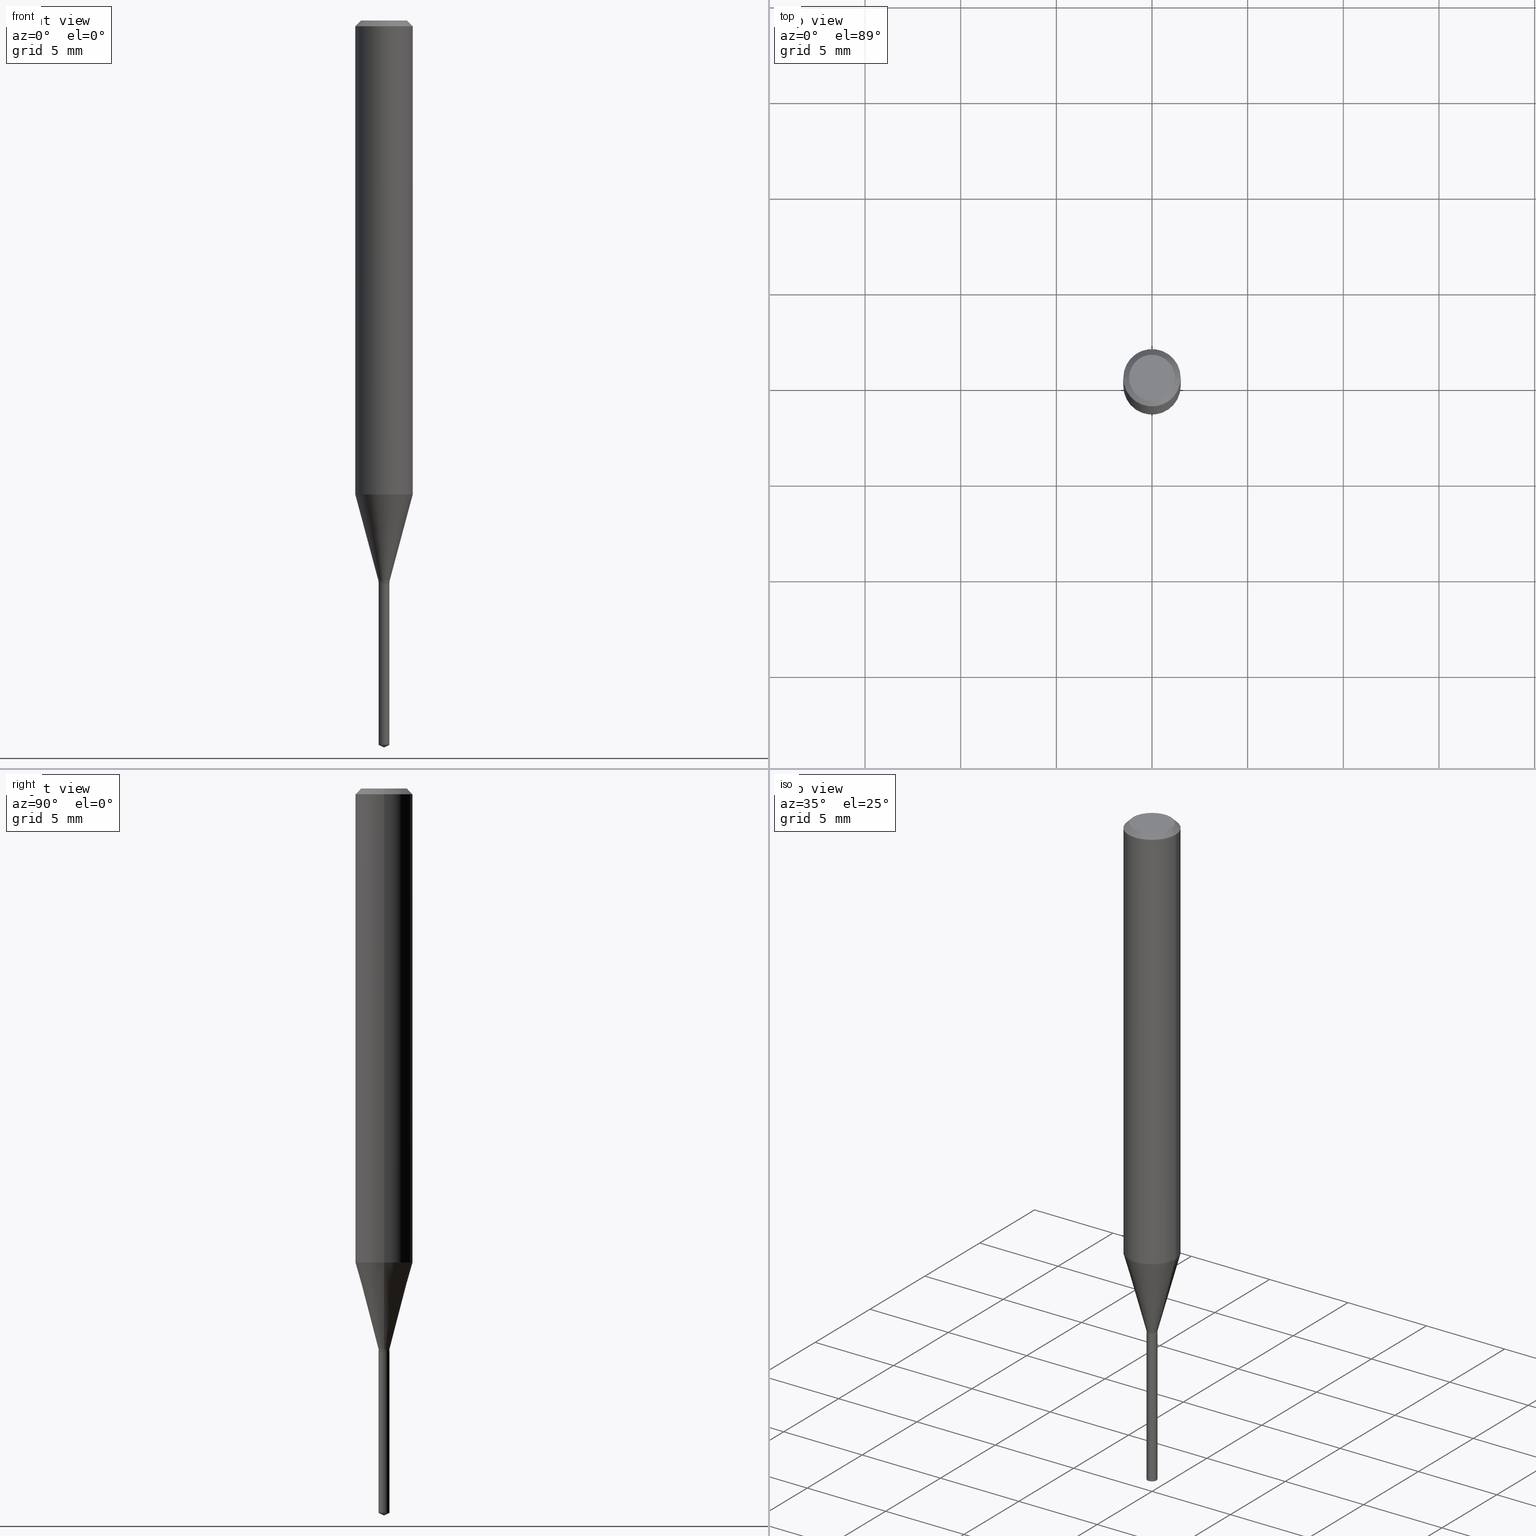
[diagram: canonical four-view strip — front | top / right | iso, engineering-drawing reading convention]
A machine part, canonical four-view strip (front | top / right | iso — engineering-drawing reading convention). The complete STEP part file that produces these views, byte-faithful:
ISO-10303-21;
HEADER;
FILE_DESCRIPTION (( 'STEP AP203' ),
    '1' );
FILE_NAME ('07776.STEP',
    '2024-04-24T02:47:26',
    ( '' ),
    ( '' ),
    'SwSTEP 2.0',
    'SolidWorks 2023',
    '' );
FILE_SCHEMA (( 'CONFIG_CONTROL_DESIGN' ));
ENDSEC;

DATA;
#1 = ORIENTED_EDGE ( 'NONE', *, *, #54, .F. ) ;
#2 = ORIENTED_EDGE ( 'NONE', *, *, #112, .T. ) ;
#3 = APPLICATION_CONTEXT ( 'configuration controlled 3d designs of mechanical parts and assemblies' ) ;
#4 = AXIS2_PLACEMENT_3D ( 'NONE', #133, #358, #280 ) ;
#5 = DIRECTION ( 'NONE',  ( 2.445468806185136597E-29, -3.491481338843145583E-15, -1.000000000000000000 ) ) ;
#6 = DIRECTION ( 'NONE',  ( -2.445468806185136597E-29, 3.491481338843145583E-15, 1.000000000000000000 ) ) ;
#7 = DIRECTION ( 'NONE',  ( -2.445468806185136597E-29, 3.491481338843145583E-15, 1.000000000000000000 ) ) ;
#8 = ORIENTED_EDGE ( 'NONE', *, *, #193, .F. ) ;
#9 = AXIS2_PLACEMENT_3D ( 'NONE', #57, #472, #124 ) ;
#10 = CC_DESIGN_DATE_AND_TIME_ASSIGNMENT ( #347, #397, ( #52 ) ) ;
#11 = CC_DESIGN_SECURITY_CLASSIFICATION ( #52, ( #379 ) ) ;
#12 = CARTESIAN_POINT ( 'NONE',  ( -0.01070000000000000118, -3.965361576984609876E-15, -1.157499999999999973 ) ) ;
#13 = DIRECTION ( 'NONE',  ( 1.000000000000000000, -6.982962677686266711E-15, 4.876176775795935793E-29 ) ) ;
#14 = CARTESIAN_POINT ( 'NONE',  ( 0.05904999999999999832, -4.535783407291118600E-16, -0.01181000000000006871 ) ) ;
#15 = DIRECTION ( 'NONE',  ( -2.445468806185136597E-29, 3.491481338843145583E-15, 1.000000000000000000 ) ) ;
#16 = DIRECTION ( 'NONE',  ( 1.000000000000000000, -6.982962677686266711E-15, 4.876176775795936353E-29 ) ) ;
#17 = EDGE_CURVE ( 'NONE', #306, #477, #110, .T. ) ;
#18 = CARTESIAN_POINT ( 'NONE',  ( 2.888098660104663328E-31, -4.123439461173779030E-17, -0.01181000000000006871 ) ) ;
#19 = VECTOR ( 'NONE', #213, 39.37007874015748143 ) ;
#20 = VECTOR ( 'NONE', #468, 39.37007874015748143 ) ;
#21 = CARTESIAN_POINT ( 'NONE',  ( -0.05905000000000013016, -2.986439169543490750E-15, -0.9755213688578289188 ) ) ;
#22 = CARTESIAN_POINT ( 'NONE',  ( 2.385607077308845080E-29, -3.406014655009830638E-15, -0.9755213688578289188 ) ) ;
#23 = COORDINATED_UNIVERSAL_TIME_OFFSET ( 5, 0, .BEHIND. ) ;
#24 = DIRECTION ( 'NONE',  ( 2.445457056059012235E-29, -3.491498165692530705E-15, -1.000000000000000000 ) ) ;
#25 = DIRECTION ( 'NONE',  ( 2.445468806185136597E-29, -3.491481338843145583E-15, -1.000000000000000000 ) ) ;
#26 = ORIENTED_EDGE ( 'NONE', *, *, #144, .T. ) ;
#27 = APPROVAL_DATE_TIME ( #471, #482 ) ;
#28 = EDGE_LOOP ( 'NONE', ( #339, #81, #338, #84 ) ) ;
#29 = COORDINATED_UNIVERSAL_TIME_OFFSET ( 5, 0, .BEHIND. ) ;
#30 = AXIS2_PLACEMENT_3D ( 'NONE', #151, #39, #271 ) ;
#31 = EDGE_CURVE ( 'NONE', #335, #183, #285, .T. ) ;
#32 = CONICAL_SURFACE ( 'NONE', #320, 0.01070000000000000118, 0.7853981633974119747 ) ;
#33 = EDGE_LOOP ( 'NONE', ( #76, #44, #377, #300 ) ) ;
#34 = ORIENTED_EDGE ( 'NONE', *, *, #470, .F. ) ;
#35 = EDGE_CURVE ( 'NONE', #306, #348, #344, .T. ) ;
#36 = ORIENTED_EDGE ( 'NONE', *, *, #144, .F. ) ;
#37 = AXIS2_PLACEMENT_3D ( 'NONE', #149, #143, #292 ) ;
#38 = ORIENTED_EDGE ( 'NONE', *, *, #83, .F. ) ;
#39 = DIRECTION ( 'NONE',  ( -2.445468806185136597E-29, 3.491481338843145583E-15, 1.000000000000000000 ) ) ;
#40 = CARTESIAN_POINT ( 'NONE',  ( -0.05904999999999999832, -1.304049039344443704E-15, -0.01181000000000006871 ) ) ;
#41 = CC_DESIGN_PERSON_AND_ORGANIZATION_ASSIGNMENT ( #214, #121, ( #379 ) ) ;
#42 = AXIS2_PLACEMENT_3D ( 'NONE', #451, #455, #266 ) ;
#43 = CONICAL_SURFACE ( 'NONE', #487, 0.01119999999999999989, 0.2617993877991499074 ) ;
#44 = ORIENTED_EDGE ( 'NONE', *, *, #462, .T. ) ;
#45 = ORIENTED_EDGE ( 'NONE', *, *, #48, .F. ) ;
#46 = PERSON_AND_ORGANIZATION_ROLE ( 'design_owner' ) ;
#47 = LINE ( 'NONE', #174, #254 ) ;
#48 = EDGE_CURVE ( 'NONE', #183, #335, #200, .T. ) ;
#49 = DIRECTION ( 'NONE',  ( 1.000000000000000000, -6.982962677686280910E-15, 0.000000000000000000 ) ) ;
#50 = DIRECTION ( 'NONE',  ( -1.000000000000000000, 6.982962677686265922E-15, -4.876176775795935793E-29 ) ) ;
#51 = VECTOR ( 'NONE', #204, 39.37007874015748854 ) ;
#52 = SECURITY_CLASSIFICATION ( '', '', #363 ) ;
#53 = DIRECTION ( 'NONE',  ( -0.7071067811865453523, 2.468850131082234184E-15, -0.7071067811865496822 ) ) ;
#54 = EDGE_CURVE ( 'NONE', #74, #489, #386, .T. ) ;
#55 = CARTESIAN_POINT ( 'NONE',  ( 2.888098660104663328E-31, -4.123439461173779030E-17, -0.01181000000000006871 ) ) ;
#56 = CARTESIAN_POINT ( 'NONE',  ( -7.820918199004973468E-17, -0.01120000000000520753, -1.490877354228663965 ) ) ;
#57 = CARTESIAN_POINT ( 'NONE',  ( 2.830630143159295633E-29, -4.041389649710940900E-15, -1.157499999999999973 ) ) ;
#58 = DIRECTION ( 'NONE',  ( -2.445468806185136877E-29, 3.491481338843145188E-15, 1.000000000000000000 ) ) ;
#59 = APPROVAL_STATUS ( 'not_yet_approved' ) ;
#60 = AXIS2_PLACEMENT_3D ( 'NONE', #275, #431, #16 ) ;
#61 = CARTESIAN_POINT ( 'NONE',  ( 3.658675741637279389E-29, -5.223591451536267840E-15, -1.496099999999999985 ) ) ;
#62 = CARTESIAN_POINT ( 'NONE',  ( -0.04724000000000000421, 3.504923541997677355E-16, -3.380025165670481712E-19 ) ) ;
#63 = PERSON_AND_ORGANIZATION ( #458, #388 ) ;
#64 = ADVANCED_FACE ( 'NONE', ( #418 ), #450, .T. ) ;
#65 = COORDINATED_UNIVERSAL_TIME_OFFSET ( 5, 0, .BEHIND. ) ;
#66 = ORIENTED_EDGE ( 'NONE', *, *, #380, .T. ) ;
#67 = VECTOR ( 'NONE', #123, 39.37007874015748143 ) ;
#68 = CIRCLE ( 'NONE', #37, 0.01119999999999999989 ) ;
#69 = APPROVAL_PERSON_ORGANIZATION ( #142, #330, #359 ) ;
#70 = EDGE_LOOP ( 'NONE', ( #166, #177 ) ) ;
#71 = EDGE_CURVE ( 'NONE', #219, #446, #415, .T. ) ;
#72 = ORIENTED_EDGE ( 'NONE', *, *, #289, .T. ) ;
#73 = PRODUCT ( '07776', '07776', '', ( #281 ) ) ;
#74 = VERTEX_POINT ( 'NONE', #40 ) ;
#75 = AXIS2_PLACEMENT_3D ( 'NONE', #55, #164, #167 ) ;
#76 = ORIENTED_EDGE ( 'NONE', *, *, #202, .F. ) ;
#77 = CARTESIAN_POINT ( 'NONE',  ( -0.01119999999999999989, 7.958078640513122001E-17, -5.509207301085494184E-31 ) ) ;
#78 = EDGE_CURVE ( 'NONE', #367, #328, #345, .T. ) ;
#79 = ORIENTED_EDGE ( 'NONE', *, *, #354, .F. ) ;
#80 = CIRCLE ( 'NONE', #159, 0.01119999999999999989 ) ;
#81 = ORIENTED_EDGE ( 'NONE', *, *, #193, .T. ) ;
#82 = CC_DESIGN_APPROVAL ( #330, ( #52 ) ) ;
#83 = EDGE_CURVE ( 'NONE', #219, #348, #274, .T. ) ;
#84 = ORIENTED_EDGE ( 'NONE', *, *, #117, .F. ) ;
#85 = DIRECTION ( 'NONE',  ( -2.445468806185136597E-29, 3.491481338843145583E-15, 1.000000000000000000 ) ) ;
#86 = CARTESIAN_POINT ( 'NONE',  ( 0.01119999999999999989, -4.107727795148960403E-15, -1.154099999999999904 ) ) ;
#87 = DIRECTION ( 'NONE',  ( 1.000000000000000000, -6.982962677686265133E-15, 0.000000000000000000 ) ) ;
#88 = DIRECTION ( 'NONE',  ( -2.445457056059012515E-29, 3.491498165692530705E-15, 1.000000000000000000 ) ) ;
#89 = VECTOR ( 'NONE', #96, 39.37007874015748143 ) ;
#90 = CIRCLE ( 'NONE', #343, 0.04724000000000000421 ) ;
#91 = CARTESIAN_POINT ( 'NONE',  ( 0.01119999999999999989, -4.117853091031605123E-15, -1.156999999999999806 ) ) ;
#92 = LINE ( 'NONE', #390, #427 ) ;
#93 = CARTESIAN_POINT ( 'NONE',  ( 2.822315549218265928E-29, -4.029518613158873887E-15, -1.154099999999999904 ) ) ;
#94 = DIRECTION ( 'NONE',  ( -2.445468806185136597E-29, 3.491481338843145583E-15, 1.000000000000000000 ) ) ;
#95 = COORDINATED_UNIVERSAL_TIME_OFFSET ( 5, 0, .BEHIND. ) ;
#96 = DIRECTION ( 'NONE',  ( 0.7071067811865453523, -7.319954787623248157E-15, -0.7071067811865496822 ) ) ;
#97 = CARTESIAN_POINT ( 'NONE',  ( 3.645890146388067185E-29, -5.205376070483750124E-15, -1.490877354228663965 ) ) ;
#98 = PERSON_AND_ORGANIZATION_ROLE ( 'classification_officer' ) ;
#99 = AXIS2_PLACEMENT_3D ( 'NONE', #364, #263, #131 ) ;
#100 = EDGE_CURVE ( 'NONE', #348, #367, #225, .T. ) ;
#101 = CARTESIAN_POINT ( 'NONE',  ( 0.000000000000000000, 0.000000000000000000, 0.000000000000000000 ) ) ;
#102 = CARTESIAN_POINT ( 'NONE',  ( 0.01070000000000000118, -4.116107350362183620E-15, -1.157499999999999973 ) ) ;
#103 = ORIENTED_EDGE ( 'NONE', *, *, #417, .F. ) ;
#104 = ORIENTED_EDGE ( 'NONE', *, *, #100, .T. ) ;
#105 = ADVANCED_FACE ( 'NONE', ( #341 ), #106, .T. ) ;
#106 = CONICAL_SURFACE ( 'NONE', #486, 0.05904999999999999832, 0.7853981633974452814 ) ;
#107 = ORIENTED_EDGE ( 'NONE', *, *, #269, .F. ) ;
#108 = EDGE_LOOP ( 'NONE', ( #141, #293, #103 ) ) ;
#109 = ORIENTED_EDGE ( 'NONE', *, *, #83, .T. ) ;
#110 = CIRCLE ( 'NONE', #30, 0.01070000000000000118 ) ;
#111 = CIRCLE ( 'NONE', #296, 0.04724000000000000421 ) ;
#112 = EDGE_CURVE ( 'NONE', #446, #414, #47, .T. ) ;
#113 = LOCAL_TIME ( 22, 47, 26.00000000000000000, #23 ) ;
#114 = EDGE_LOOP ( 'NONE', ( #307, #412 ) ) ;
#115 = CARTESIAN_POINT ( 'NONE',  ( 0.01070000000000000118, -4.116107350362183620E-15, -1.157499999999999973 ) ) ;
#116 = DIRECTION ( 'NONE',  ( -2.445468806185136877E-29, 3.491481338843145188E-15, 1.000000000000000000 ) ) ;
#117 = EDGE_CURVE ( 'NONE', #328, #489, #165, .T. ) ;
#118 = AXIS2_PLACEMENT_3D ( 'NONE', #357, #24, #241 ) ;
#119 = VERTEX_POINT ( 'NONE', #425 ) ;
#120 = APPROVAL_PERSON_ORGANIZATION ( #365, #482, #249 ) ;
#121 = PERSON_AND_ORGANIZATION_ROLE ( 'creator' ) ;
#122 = DIRECTION ( 'NONE',  ( -6.982962677686267499E-15, -1.000000000000000000, 3.520397390770408510E-15 ) ) ;
#123 = DIRECTION ( 'NONE',  ( 0.7071067811865218156, -2.468850131081987665E-15, 0.7071067811865732189 ) ) ;
#124 = DIRECTION ( 'NONE',  ( -6.982962677686266711E-15, -1.000000000000000000, 0.000000000000000000 ) ) ;
#125 = CARTESIAN_POINT ( 'NONE',  ( 0.000000000000000000, 0.000000000000000000, 0.000000000000000000 ) ) ;
#126 = FACE_OUTER_BOUND ( 'NONE', #447, .T. ) ;
#127 = AXIS2_PLACEMENT_3D ( 'NONE', #230, #7, #308 ) ;
#128 = CARTESIAN_POINT ( 'NONE',  ( -7.820918199005786981E-17, -0.01120000000000404179, -1.157499999999999973 ) ) ;
#129 = ADVANCED_FACE ( 'NONE', ( #138 ), #317, .T. ) ;
#130 = AXIS2_PLACEMENT_3D ( 'NONE', #258, #253, #408 ) ;
#131 = DIRECTION ( 'NONE',  ( 1.000000000000000000, -6.982962677686280910E-15, 0.000000000000000000 ) ) ;
#132 = MANIFOLD_SOLID_BREP ( 'Body-Move/Copy2[2]', #342 ) ;
#133 = CARTESIAN_POINT ( 'NONE',  ( 2.829407408756202832E-29, -4.039643909041518608E-15, -1.156999999999999806 ) ) ;
#134 = DATE_TIME_ROLE ( 'creation_date' ) ;
#135 = FACE_OUTER_BOUND ( 'NONE', #28, .T. ) ;
#136 = CARTESIAN_POINT ( 'NONE',  ( 0.000000000000000000, 0.000000000000000000, 0.000000000000000000 ) ) ;
#137 = CC_DESIGN_PERSON_AND_ORGANIZATION_ASSIGNMENT ( #322, #481, ( #297 ) ) ;
#138 = FACE_OUTER_BOUND ( 'NONE', #256, .T. ) ;
#139 = APPROVAL_ROLE ( '' ) ;
#140 = CLOSED_SHELL ( 'NONE', ( #316, #64, #426, #454, #406 ) ) ;
#141 = ORIENTED_EDGE ( 'NONE', *, *, #226, .F. ) ;
#142 = PERSON_AND_ORGANIZATION ( #458, #388 ) ;
#143 = DIRECTION ( 'NONE',  ( -2.445468806185136597E-29, 3.491481338843145583E-15, 1.000000000000000000 ) ) ;
#144 = EDGE_CURVE ( 'NONE', #190, #335, #286, .T. ) ;
#145 = EDGE_LOOP ( 'NONE', ( #157, #255, #252, #318 ) ) ;
#146 = FACE_OUTER_BOUND ( 'NONE', #220, .T. ) ;
#147 = ORIENTED_EDGE ( 'NONE', *, *, #269, .T. ) ;
#148 = ORIENTED_EDGE ( 'NONE', *, *, #221, .T. ) ;
#149 = CARTESIAN_POINT ( 'NONE',  ( 2.822315549218265928E-29, -4.029518613158873887E-15, -1.154099999999999904 ) ) ;
#150 = EDGE_LOOP ( 'NONE', ( #483, #188, #444 ) ) ;
#151 = CARTESIAN_POINT ( 'NONE',  ( 2.830630143159295633E-29, -4.041389649710940900E-15, -1.157499999999999973 ) ) ;
#152 = AXIS2_PLACEMENT_3D ( 'NONE', #136, #201, #396 ) ;
#153 = DIRECTION ( 'NONE',  ( -1.000000000000000000, 6.982962677686266711E-15, 0.000000000000000000 ) ) ;
#154 = PRODUCT_DEFINITION_SHAPE ( 'NONE', 'NONE',  #297 ) ;
#155 = ORIENTED_EDGE ( 'NONE', *, *, #417, .T. ) ;
#156 = ADVANCED_FACE ( 'NONE', ( #385 ), #466, .F. ) ;
#157 = ORIENTED_EDGE ( 'NONE', *, *, #17, .T. ) ;
#158 = CALENDAR_DATE ( 2024, 23, 4 ) ;
#159 = AXIS2_PLACEMENT_3D ( 'NONE', #235, #85, #279 ) ;
#160 = CARTESIAN_POINT ( 'NONE',  ( 2.830630143159295633E-29, -4.041389649710940900E-15, -1.157499999999999973 ) ) ;
#161 = CARTESIAN_POINT ( 'NONE',  ( 0.01119999999999999989, -4.107727795148960403E-15, -1.154099999999999904 ) ) ;
#162 = CARTESIAN_POINT ( 'NONE',  ( 4.132873053354867254E-48, -5.900647395337818946E-34, -1.690012582823346072E-19 ) ) ;
#163 = EDGE_CURVE ( 'NONE', #195, #381, #90, .T. ) ;
#164 = DIRECTION ( 'NONE',  ( -2.445468806185136597E-29, 3.491481338843145583E-15, 1.000000000000000000 ) ) ;
#165 = LINE ( 'NONE', #351, #378 ) ;
#166 = ORIENTED_EDGE ( 'NONE', *, *, #17, .F. ) ;
#167 = DIRECTION ( 'NONE',  ( 1.000000000000000000, -6.982962677686266711E-15, 0.000000000000000000 ) ) ;
#168 = CARTESIAN_POINT ( 'NONE',  ( 2.830630143159295633E-29, -4.041389649710940900E-15, -1.157499999999999973 ) ) ;
#169 = AXIS2_PLACEMENT_3D ( 'NONE', #182, #411, #484 ) ;
#170 = APPROVAL_PERSON_ORGANIZATION ( #63, #340, #139 ) ;
#171 = DIRECTION ( 'NONE',  ( -2.445468806185136597E-29, 3.491481338843145583E-15, 1.000000000000000000 ) ) ;
#172 = ADVANCED_FACE ( 'NONE', ( #232 ), #439, .T. ) ;
#173 = SHAPE_DEFINITION_REPRESENTATION ( #154, #437 ) ;
#174 = CARTESIAN_POINT ( 'NONE',  ( -0.01119999999999999989, -3.949937826753742754E-15, -1.154099999999999904 ) ) ;
#175 = APPROVAL_DATE_TIME ( #402, #330 ) ;
#176 =( CONVERSION_BASED_UNIT ( 'INCH', #368 ) LENGTH_UNIT ( ) NAMED_UNIT ( #323 ) );
#177 = ORIENTED_EDGE ( 'NONE', *, *, #334, .F. ) ;
#178 = APPLICATION_PROTOCOL_DEFINITION ( 'international standard', 'config_control_design', 1994, #3 ) ;
#179 = CONICAL_SURFACE ( 'NONE', #452, 84.42940631927542938, 1.134464013796320891 ) ;
#180 = DIRECTION ( 'NONE',  ( 1.000000000000000000, -6.982962677686265133E-15, 0.000000000000000000 ) ) ;
#181 = ORIENTED_EDGE ( 'NONE', *, *, #31, .F. ) ;
#182 = CARTESIAN_POINT ( 'NONE',  ( 2.830630143159295633E-29, -4.041389649710940900E-15, -1.157499999999999973 ) ) ;
#183 = VERTEX_POINT ( 'NONE', #283 ) ;
#184 = CARTESIAN_POINT ( 'NONE',  ( 7.958078640515952039E-17, 0.01119999999999595798, -1.157499999999999973 ) ) ;
#185 = ORIENTED_EDGE ( 'NONE', *, *, #112, .F. ) ;
#186 = AXIS2_PLACEMENT_3D ( 'NONE', #395, #311, #244 ) ;
#187 = CYLINDRICAL_SURFACE ( 'NONE', #130, 0.01119999999999999989 ) ;
#188 = ORIENTED_EDGE ( 'NONE', *, *, #226, .T. ) ;
#189 = CC_DESIGN_PERSON_AND_ORGANIZATION_ASSIGNMENT ( #433, #98, ( #52 ) ) ;
#190 = VERTEX_POINT ( 'NONE', #56 ) ;
#191 = DIRECTION ( 'NONE',  ( -2.445468806185136877E-29, 3.491481338843145188E-15, 1.000000000000000000 ) ) ;
#192 = AXIS2_PLACEMENT_3D ( 'NONE', #313, #350, #424 ) ;
#193 = EDGE_CURVE ( 'NONE', #414, #74, #278, .T. ) ;
#194 = LOCAL_TIME ( 22, 47, 26.00000000000000000, #290 ) ;
#195 = VERTEX_POINT ( 'NONE', #62 ) ;
#196 = DIRECTION ( 'NONE',  ( -2.445457056059012515E-29, 3.491498165692530705E-15, 1.000000000000000000 ) ) ;
#197 = CALENDAR_DATE ( 2024, 23, 4 ) ;
#198 = DIRECTION ( 'NONE',  ( -6.982962677686266711E-15, -1.000000000000000000, 0.000000000000000000 ) ) ;
#199 = DIRECTION ( 'NONE',  ( -2.445468806185136597E-29, 3.491481338843145583E-15, 1.000000000000000000 ) ) ;
#200 = CIRCLE ( 'NONE', #42, 0.01119999999999999989 ) ;
#201 = DIRECTION ( 'NONE',  ( -2.445468806185136597E-29, 3.491481338843145583E-15, 1.000000000000000000 ) ) ;
#202 = EDGE_CURVE ( 'NONE', #381, #195, #111, .T. ) ;
#203 = DIRECTION ( 'NONE',  ( -2.445457056059012515E-29, 3.491498165692530705E-15, 1.000000000000000000 ) ) ;
#204 = DIRECTION ( 'NONE',  ( -6.328713451373388311E-15, -0.9063077870366512689, 0.4226182617406964992 ) ) ;
#205 = CARTESIAN_POINT ( 'NONE',  ( -9.261917495037615480E-28, 1.322369467758159045E-13, 37.87397874015748300 ) ) ;
#206 = CARTESIAN_POINT ( 'NONE',  ( 3.658648301569888039E-29, -5.223630405692593810E-15, -1.496099999999999985 ) ) ;
#207 = LINE ( 'NONE', #12, #20 ) ;
#208 = EDGE_CURVE ( 'NONE', #119, #190, #366, .T. ) ;
#209 = CARTESIAN_POINT ( 'NONE',  ( 2.830630143159295633E-29, -4.041389649710940900E-15, -1.157499999999999973 ) ) ;
#210 = AXIS2_PLACEMENT_3D ( 'NONE', #162, #245, #50 ) ;
#211 = APPROVAL_STATUS ( 'not_yet_approved' ) ;
#212 = FACE_OUTER_BOUND ( 'NONE', #145, .T. ) ;
#213 = DIRECTION ( 'NONE',  ( -2.445457056059012515E-29, 3.491498165692530705E-15, 1.000000000000000000 ) ) ;
#214 = PERSON_AND_ORGANIZATION ( #458, #388 ) ;
#215 = DIRECTION ( 'NONE',  ( 0.000000000000000000, 0.000000000000000000, 1.000000000000000000 ) ) ;
#216 = VECTOR ( 'NONE', #374, 39.37007874015748854 ) ;
#217 = CIRCLE ( 'NONE', #4, 0.01119999999999999989 ) ;
#218 = ADVANCED_FACE ( 'NONE', ( #237 ), #387, .T. ) ;
#219 = VERTEX_POINT ( 'NONE', #476 ) ;
#220 = EDGE_LOOP ( 'NONE', ( #72, #2, #34, #416 ) ) ;
#221 = EDGE_CURVE ( 'NONE', #195, #74, #92, .T. ) ;
#222 = EDGE_LOOP ( 'NONE', ( #155, #430, #181, #36 ) ) ;
#223 = CIRCLE ( 'NONE', #304, 0.05905000000000013016 ) ;
#224 = ORIENTED_EDGE ( 'NONE', *, *, #289, .F. ) ;
#225 = LINE ( 'NONE', #376, #407 ) ;
#226 = EDGE_CURVE ( 'NONE', #302, #190, #394, .T. ) ;
#227 = DIRECTION ( 'NONE',  ( -6.982962677686267499E-15, -1.000000000000000000, 3.520397390770408510E-15 ) ) ;
#228 = CIRCLE ( 'NONE', #169, 0.01070000000000000118 ) ;
#229 = ORIENTED_EDGE ( 'NONE', *, *, #163, .F. ) ;
#230 = CARTESIAN_POINT ( 'NONE',  ( 2.829407408756202832E-29, -4.039643909041518608E-15, -1.156999999999999806 ) ) ;
#231 = FACE_OUTER_BOUND ( 'NONE', #485, .T. ) ;
#232 = FACE_OUTER_BOUND ( 'NONE', #449, .T. ) ;
#233 = PRODUCT_RELATED_PRODUCT_CATEGORY ( 'detail', '', ( #73 ) ) ;
#234 = AXIS2_PLACEMENT_3D ( 'NONE', #423, #196, #227 ) ;
#235 = CARTESIAN_POINT ( 'NONE',  ( 2.822315549218265928E-29, -4.029518613158873887E-15, -1.154099999999999904 ) ) ;
#236 = VECTOR ( 'NONE', #239, 39.37007874015748143 ) ;
#237 = FACE_OUTER_BOUND ( 'NONE', #33, .T. ) ;
#238 = FACE_OUTER_BOUND ( 'NONE', #453, .T. ) ;
#239 = DIRECTION ( 'NONE',  ( -2.445468806185136877E-29, 3.491481338843145188E-15, 1.000000000000000000 ) ) ;
#240 = ADVANCED_FACE ( 'NONE', ( #356 ), #353, .F. ) ;
#241 = DIRECTION ( 'NONE',  ( 6.982962677686265922E-15, 1.000000000000000000, -3.491498165692530705E-15 ) ) ;
#242 = DIRECTION ( 'NONE',  ( 1.000000000000000000, -6.982962677686276966E-15, 0.000000000000000000 ) ) ;
#243 = APPROVAL_DATE_TIME ( #383, #340 ) ;
#244 = DIRECTION ( 'NONE',  ( -6.982962677686266711E-15, -1.000000000000000000, 0.000000000000000000 ) ) ;
#245 = DIRECTION ( 'NONE',  ( 2.438088387897960049E-29, -3.491481338843145188E-15, -1.000000000000000000 ) ) ;
#246 = VECTOR ( 'NONE', #270, 39.37007874015748143 ) ;
#247 = APPLICATION_PROTOCOL_DEFINITION ( 'international standard', 'config_control_design', 1994, #465 ) ;
#248 = CARTESIAN_POINT ( 'NONE',  ( 0.05905000000000013016, -3.818358601127205952E-15, -0.9755213688578289188 ) ) ;
#249 = APPROVAL_ROLE ( '' ) ;
#250 = LINE ( 'NONE', #184, #261 ) ;
#251 = EDGE_CURVE ( 'NONE', #348, #219, #217, .T. ) ;
#252 = ORIENTED_EDGE ( 'NONE', *, *, #251, .F. ) ;
#253 = DIRECTION ( 'NONE',  ( -2.445457056059012515E-29, 3.491498165692530705E-15, 1.000000000000000000 ) ) ;
#254 = VECTOR ( 'NONE', #314, 39.37007874015748854 ) ;
#255 = ORIENTED_EDGE ( 'NONE', *, *, #354, .T. ) ;
#256 = EDGE_LOOP ( 'NONE', ( #333, #109, #104, #410 ) ) ;
#257 = ADVANCED_FACE ( 'NONE', ( #432 ), #32, .T. ) ;
#258 = CARTESIAN_POINT ( 'NONE',  ( 2.830630143159295633E-29, -4.041389649710940900E-15, -1.157499999999999973 ) ) ;
#259 = EDGE_LOOP ( 'NONE', ( #79, #405, #459, #38 ) ) ;
#260 = ORIENTED_EDGE ( 'NONE', *, *, #31, .T. ) ;
#261 = VECTOR ( 'NONE', #404, 39.37007874015748143 ) ;
#262 =( GEOMETRIC_REPRESENTATION_CONTEXT ( 3 ) GLOBAL_UNCERTAINTY_ASSIGNED_CONTEXT ( ( #392 ) ) GLOBAL_UNIT_ASSIGNED_CONTEXT ( ( #176, #326, #475 ) ) REPRESENTATION_CONTEXT ( 'NONE', 'WORKASPACE' ) );
#263 = DIRECTION ( 'NONE',  ( -2.445468806185136597E-29, 3.491481338843145583E-15, 1.000000000000000000 ) ) ;
#264 = ORIENTED_EDGE ( 'NONE', *, *, #251, .T. ) ;
#265 = DIRECTION ( 'NONE',  ( 1.000000000000000000, -6.982962677686266711E-15, 0.000000000000000000 ) ) ;
#266 = DIRECTION ( 'NONE',  ( -6.982962677686266711E-15, -1.000000000000000000, 0.000000000000000000 ) ) ;
#267 = CIRCLE ( 'NONE', #337, 0.05905000000000013016 ) ;
#268 = ORIENTED_EDGE ( 'NONE', *, *, #100, .F. ) ;
#269 = EDGE_CURVE ( 'NONE', #414, #328, #267, .T. ) ;
#270 = DIRECTION ( 'NONE',  ( 6.439704144417044553E-15, 0.9063077870366542665, 0.4226182617406902819 ) ) ;
#271 = DIRECTION ( 'NONE',  ( 1.000000000000000000, -6.982962677686276966E-15, 0.000000000000000000 ) ) ;
#272 = CARTESIAN_POINT ( 'NONE',  ( 0.05904999999999999832, -4.463468013801466955E-16, -0.01181000000000006871 ) ) ;
#273 = CARTESIAN_POINT ( 'NONE',  ( -0.05905000000000006771, 4.195754854663396409E-16, -2.904631170795525045E-30 ) ) ;
#274 = CIRCLE ( 'NONE', #127, 0.01119999999999999989 ) ;
#275 = CARTESIAN_POINT ( 'NONE',  ( 0.000000000000000000, 0.000000000000000000, 0.000000000000000000 ) ) ;
#276 = AXIS2_PLACEMENT_3D ( 'NONE', #97, #88, #401 ) ;
#277 = CC_DESIGN_APPROVAL ( #340, ( #379 ) ) ;
#278 = LINE ( 'NONE', #273, #236 ) ;
#279 = DIRECTION ( 'NONE',  ( 1.000000000000000000, -6.982962677686280910E-15, 0.000000000000000000 ) ) ;
#280 = DIRECTION ( 'NONE',  ( 1.000000000000000000, -6.982962677686280910E-15, 0.000000000000000000 ) ) ;
#281 = MECHANICAL_CONTEXT ( 'NONE', #465, 'mechanical' ) ;
#282 = CYLINDRICAL_SURFACE ( 'NONE', #192, 0.05905000000000006771 ) ;
#283 = CARTESIAN_POINT ( 'NONE',  ( 7.958078640516774180E-17, 0.01119999999999595798, -1.157499999999999973 ) ) ;
#284 = CALENDAR_DATE ( 2024, 23, 4 ) ;
#285 = CIRCLE ( 'NONE', #349, 0.01119999999999999989 ) ;
#286 = LINE ( 'NONE', #128, #19 ) ;
#287 = CIRCLE ( 'NONE', #75, 0.05904999999999999832 ) ;
#288 = DATE_AND_TIME ( #284, #332 ) ;
#289 = EDGE_CURVE ( 'NONE', #367, #446, #68, .T. ) ;
#290 = COORDINATED_UNIVERSAL_TIME_OFFSET ( 5, 0, .BEHIND. ) ;
#291 =( LENGTH_UNIT ( ) NAMED_UNIT ( * ) SI_UNIT ( $, .METRE. ) );
#292 = DIRECTION ( 'NONE',  ( 1.000000000000000000, -6.982962677686280910E-15, 0.000000000000000000 ) ) ;
#293 = ORIENTED_EDGE ( 'NONE', *, *, #443, .T. ) ;
#294 = AXIS2_PLACEMENT_3D ( 'NONE', #125, #15, #13 ) ;
#295 = EDGE_LOOP ( 'NONE', ( #331, #371, #26, #45 ) ) ;
#296 = AXIS2_PLACEMENT_3D ( 'NONE', #327, #361, #435 ) ;
#297 = PRODUCT_DEFINITION ( 'UNKNOWN', '', #379, #438 ) ;
#298 = AXIS2_PLACEMENT_3D ( 'NONE', #101, #215, #457 ) ;
#299 = CARTESIAN_POINT ( 'NONE',  ( 3.658648301569888039E-29, -5.223630405692595388E-15, -1.496099999999999985 ) ) ;
#300 = ORIENTED_EDGE ( 'NONE', *, *, #221, .F. ) ;
#301 = CARTESIAN_POINT ( 'NONE',  ( -7.820918199005786981E-17, -0.01120000000000404179, -1.157499999999999973 ) ) ;
#302 = VERTEX_POINT ( 'NONE', #299 ) ;
#303 = VECTOR ( 'NONE', #116, 39.37007874015748143 ) ;
#304 = AXIS2_PLACEMENT_3D ( 'NONE', #352, #389, #87 ) ;
#305 = CC_DESIGN_APPROVAL ( #482, ( #297 ) ) ;
#306 = VERTEX_POINT ( 'NONE', #102 ) ;
#307 = ORIENTED_EDGE ( 'NONE', *, *, #163, .T. ) ;
#308 = DIRECTION ( 'NONE',  ( 1.000000000000000000, -6.982962677686280910E-15, 0.000000000000000000 ) ) ;
#309 = EDGE_CURVE ( 'NONE', #119, #183, #250, .T. ) ;
#310 = AXIS2_PLACEMENT_3D ( 'NONE', #168, #321, #469 ) ;
#311 = DIRECTION ( 'NONE',  ( -2.445457056059012515E-29, 3.491498165692530705E-15, 1.000000000000000000 ) ) ;
#312 = EDGE_LOOP ( 'NONE', ( #403, #229, #148, #441 ) ) ;
#313 = CARTESIAN_POINT ( 'NONE',  ( 0.000000000000000000, 0.000000000000000000, 0.000000000000000000 ) ) ;
#314 = DIRECTION ( 'NONE',  ( -0.2588190451025211836, 5.211531920934547886E-15, 0.9659258262890679791 ) ) ;
#315 = LINE ( 'NONE', #61, #246 ) ;
#316 = ADVANCED_FACE ( 'NONE', ( #488 ), #187, .T. ) ;
#317 = CYLINDRICAL_SURFACE ( 'NONE', #294, 0.01119999999999999989 ) ;
#318 = ORIENTED_EDGE ( 'NONE', *, *, #35, .F. ) ;
#319 = CARTESIAN_POINT ( 'NONE',  ( 2.830630143159295633E-29, -4.041389649710940900E-15, -1.157499999999999973 ) ) ;
#320 = AXIS2_PLACEMENT_3D ( 'NONE', #209, #94, #242 ) ;
#321 = DIRECTION ( 'NONE',  ( -2.438088387897960049E-29, 3.491481338843145188E-15, 1.000000000000000000 ) ) ;
#322 = PERSON_AND_ORGANIZATION ( #458, #388 ) ;
#323 = DIMENSIONAL_EXPONENTS ( 1.000000000000000000, 0.000000000000000000, 0.000000000000000000, 0.000000000000000000, 0.000000000000000000, 0.000000000000000000, 0.000000000000000000 ) ;
#324 = FACE_OUTER_BOUND ( 'NONE', #295, .T. ) ;
#325 = CARTESIAN_POINT ( 'NONE',  ( 8.265746106709734507E-48, -1.180129479067563789E-33, -3.380025165646692144E-19 ) ) ;
#326 =( NAMED_UNIT ( * ) PLANE_ANGLE_UNIT ( ) SI_UNIT ( $, .RADIAN. ) );
#327 = CARTESIAN_POINT ( 'NONE',  ( 8.265746106709734507E-48, -1.180129479067563789E-33, -3.380025165646692144E-19 ) ) ;
#328 = VERTEX_POINT ( 'NONE', #248 ) ;
#329 = PERSON_AND_ORGANIZATION_ROLE ( 'design_supplier' ) ;
#330 = APPROVAL ( #59, 'UNSPECIFIED' ) ;
#331 = ORIENTED_EDGE ( 'NONE', *, *, #309, .F. ) ;
#332 = LOCAL_TIME ( 22, 47, 26.00000000000000000, #29 ) ;
#333 = ORIENTED_EDGE ( 'NONE', *, *, #71, .F. ) ;
#334 = EDGE_CURVE ( 'NONE', #477, #306, #228, .T. ) ;
#335 = VERTEX_POINT ( 'NONE', #301 ) ;
#336 = ORIENTED_EDGE ( 'NONE', *, *, #71, .T. ) ;
#337 = AXIS2_PLACEMENT_3D ( 'NONE', #22, #171, #180 ) ;
#338 = ORIENTED_EDGE ( 'NONE', *, *, #490, .F. ) ;
#339 = ORIENTED_EDGE ( 'NONE', *, *, #470, .T. ) ;
#340 = APPROVAL ( #211, 'UNSPECIFIED' ) ;
#341 = FACE_OUTER_BOUND ( 'NONE', #312, .T. ) ;
#342 = CLOSED_SHELL ( 'NONE', ( #369, #218, #391, #346, #172, #129, #400, #375, #105, #156, #240, #257 ) ) ;
#343 = AXIS2_PLACEMENT_3D ( 'NONE', #325, #473, #464 ) ;
#344 = LINE ( 'NONE', #115, #67 ) ;
#345 = LINE ( 'NONE', #86, #216 ) ;
#346 = ADVANCED_FACE ( 'NONE', ( #146 ), #445, .T. ) ;
#347 = DATE_AND_TIME ( #197, #113 ) ;
#348 = VERTEX_POINT ( 'NONE', #91 ) ;
#349 = AXIS2_PLACEMENT_3D ( 'NONE', #160, #461, #198 ) ;
#350 = DIRECTION ( 'NONE',  ( -2.445468806185136597E-29, 3.491481338843145583E-15, 1.000000000000000000 ) ) ;
#351 = CARTESIAN_POINT ( 'NONE',  ( 0.05905000000000006771, -4.123439461173745257E-16, 2.879382386107503723E-30 ) ) ;
#352 = CARTESIAN_POINT ( 'NONE',  ( 2.385607077308845080E-29, -3.406014655009830638E-15, -0.9755213688578289188 ) ) ;
#353 = PLANE ( 'NONE',  #310 ) ;
#354 = EDGE_CURVE ( 'NONE', #477, #219, #207, .T. ) ;
#355 = CARTESIAN_POINT ( 'NONE',  ( -0.01070000000000000118, -3.962712349810498675E-15, -1.157499999999999973 ) ) ;
#356 = FACE_OUTER_BOUND ( 'NONE', #70, .T. ) ;
#357 = CARTESIAN_POINT ( 'NONE',  ( 2.830630143159295633E-29, -4.041389649710940900E-15, -1.157499999999999973 ) ) ;
#358 = DIRECTION ( 'NONE',  ( -2.445468806185136597E-29, 3.491481338843145583E-15, 1.000000000000000000 ) ) ;
#359 = APPROVAL_ROLE ( '' ) ;
#360 = PLANE ( 'NONE',  #118 ) ;
#361 = DIRECTION ( 'NONE',  ( -2.445468806185136597E-29, 3.491481338843145583E-15, 1.000000000000000000 ) ) ;
#362 = CC_DESIGN_PERSON_AND_ORGANIZATION_ASSIGNMENT ( #440, #329, ( #379 ) ) ;
#363 = SECURITY_CLASSIFICATION_LEVEL ( 'unclassified' ) ;
#364 = CARTESIAN_POINT ( 'NONE',  ( 2.822315549218265928E-29, -4.029518613158873887E-15, -1.154099999999999904 ) ) ;
#365 = PERSON_AND_ORGANIZATION ( #458, #388 ) ;
#366 = CIRCLE ( 'NONE', #276, 0.01119999999999999989 ) ;
#367 = VERTEX_POINT ( 'NONE', #161 ) ;
#368 = LENGTH_MEASURE_WITH_UNIT ( LENGTH_MEASURE( 0.02539999999999999897 ), #291 );
#369 = ADVANCED_FACE ( 'NONE', ( #212 ), #467, .T. ) ;
#370 = ORIENTED_EDGE ( 'NONE', *, *, #78, .T. ) ;
#371 = ORIENTED_EDGE ( 'NONE', *, *, #208, .T. ) ;
#372 = AXIS2_PLACEMENT_3D ( 'NONE', #319, #199, #422 ) ;
#373 = LOCAL_TIME ( 22, 47, 26.00000000000000000, #65 ) ;
#374 = DIRECTION ( 'NONE',  ( 0.2588190451025211836, 1.565188264969622559E-15, 0.9659258262890679791 ) ) ;
#375 = ADVANCED_FACE ( 'NONE', ( #126 ), #282, .T. ) ;
#376 = CARTESIAN_POINT ( 'NONE',  ( 0.01119999999999999989, -7.820918199008618252E-17, 5.461317988891448214E-31 ) ) ;
#377 = ORIENTED_EDGE ( 'NONE', *, *, #490, .T. ) ;
#378 = VECTOR ( 'NONE', #58, 39.37007874015748143 ) ;
#379 = PRODUCT_DEFINITION_FORMATION_WITH_SPECIFIED_SOURCE ( 'ANY', '', #73, .NOT_KNOWN. ) ;
#380 = EDGE_CURVE ( 'NONE', #446, #367, #80, .T. ) ;
#381 = VERTEX_POINT ( 'NONE', #428 ) ;
#382 = CARTESIAN_POINT ( 'NONE',  ( 2.888098660104663328E-31, -4.123439461173779030E-17, -0.01181000000000006871 ) ) ;
#383 = DATE_AND_TIME ( #436, #373 ) ;
#384 = CARTESIAN_POINT ( 'NONE',  ( -0.01119999999999999989, -3.955000474695065508E-15, -1.154099999999999904 ) ) ;
#385 = FACE_OUTER_BOUND ( 'NONE', #114, .T. ) ;
#386 = CIRCLE ( 'NONE', #419, 0.05904999999999999832 ) ;
#387 = CONICAL_SURFACE ( 'NONE', #478, 0.05904999999999999832, 0.7853981633974452814 ) ;
#388 = ORGANIZATION ( 'UNSPECIFIED', 'UNSPECIFIED', '' ) ;
#389 = DIRECTION ( 'NONE',  ( -2.445468806185136597E-29, 3.491481338843145583E-15, 1.000000000000000000 ) ) ;
#390 = CARTESIAN_POINT ( 'NONE',  ( -0.05904999999999999832, 3.711095515056362547E-16, -0.01181000000000006871 ) ) ;
#391 = ADVANCED_FACE ( 'NONE', ( #135 ), #398, .T. ) ;
#392 = UNCERTAINTY_MEASURE_WITH_UNIT (LENGTH_MEASURE( 1.000000000000000082E-05 ), #176, 'distance_accuracy_value', 'NONE');
#393 = DIRECTION ( 'NONE',  ( -2.445468806185136597E-29, 3.491481338843145583E-15, 1.000000000000000000 ) ) ;
#394 = LINE ( 'NONE', #206, #51 ) ;
#395 = CARTESIAN_POINT ( 'NONE',  ( 3.645890146388067185E-29, -5.205376070483750124E-15, -1.490877354228663965 ) ) ;
#396 = DIRECTION ( 'NONE',  ( 1.000000000000000000, -6.982962677686266711E-15, 4.876176775795935793E-29 ) ) ;
#397 = DATE_TIME_ROLE ( 'classification_date' ) ;
#398 = CYLINDRICAL_SURFACE ( 'NONE', #60, 0.05905000000000006771 ) ;
#399 = CIRCLE ( 'NONE', #186, 0.01119999999999999989 ) ;
#400 = ADVANCED_FACE ( 'NONE', ( #238 ), #43, .T. ) ;
#401 = DIRECTION ( 'NONE',  ( -6.982962677686266711E-15, -1.000000000000000000, 0.000000000000000000 ) ) ;
#402 = DATE_AND_TIME ( #158, #194 ) ;
#403 = ORIENTED_EDGE ( 'NONE', *, *, #462, .F. ) ;
#404 = DIRECTION ( 'NONE',  ( -2.445457056059012515E-29, 3.491498165692530705E-15, 1.000000000000000000 ) ) ;
#405 = ORIENTED_EDGE ( 'NONE', *, *, #334, .T. ) ;
#406 = ADVANCED_FACE ( 'NONE', ( #231 ), #360, .F. ) ;
#407 = VECTOR ( 'NONE', #191, 39.37007874015748143 ) ;
#408 = DIRECTION ( 'NONE',  ( -6.982962677686266711E-15, -1.000000000000000000, 0.000000000000000000 ) ) ;
#409 = ORIENTED_EDGE ( 'NONE', *, *, #117, .T. ) ;
#410 = ORIENTED_EDGE ( 'NONE', *, *, #380, .F. ) ;
#411 = DIRECTION ( 'NONE',  ( -2.445468806185136597E-29, 3.491481338843145583E-15, 1.000000000000000000 ) ) ;
#412 = ORIENTED_EDGE ( 'NONE', *, *, #202, .T. ) ;
#413 = CC_DESIGN_PERSON_AND_ORGANIZATION_ASSIGNMENT ( #442, #46, ( #73 ) ) ;
#414 = VERTEX_POINT ( 'NONE', #21 ) ;
#415 = LINE ( 'NONE', #77, #303 ) ;
#416 = ORIENTED_EDGE ( 'NONE', *, *, #78, .F. ) ;
#417 = EDGE_CURVE ( 'NONE', #190, #119, #399, .T. ) ;
#418 = FACE_OUTER_BOUND ( 'NONE', #108, .T. ) ;
#419 = AXIS2_PLACEMENT_3D ( 'NONE', #420, #6, #265 ) ;
#420 = CARTESIAN_POINT ( 'NONE',  ( 2.888098660104663328E-31, -4.123439461173779030E-17, -0.01181000000000006871 ) ) ;
#421 = APPROVAL_STATUS ( 'not_yet_approved' ) ;
#422 = DIRECTION ( 'NONE',  ( 1.000000000000000000, -6.982962677686276966E-15, 0.000000000000000000 ) ) ;
#423 = CARTESIAN_POINT ( 'NONE',  ( -9.261917495037615480E-28, 1.322369467758159045E-13, 37.87397874015748300 ) ) ;
#424 = DIRECTION ( 'NONE',  ( 1.000000000000000000, -6.982962677686266711E-15, 4.876176775795936353E-29 ) ) ;
#425 = CARTESIAN_POINT ( 'NONE',  ( 7.958078640516768017E-17, 0.01119999999999479398, -1.490877354228663965 ) ) ;
#426 = ADVANCED_FACE ( 'NONE', ( #460 ), #179, .T. ) ;
#427 = VECTOR ( 'NONE', #53, 39.37007874015748143 ) ;
#428 = CARTESIAN_POINT ( 'NONE',  ( 0.04724000000000000421, -3.852183633974369345E-16, -3.380025165621689721E-19 ) ) ;
#429 = DIRECTION ( 'NONE',  ( -1.000000000000000000, 6.982962677686266711E-15, 0.000000000000000000 ) ) ;
#430 = ORIENTED_EDGE ( 'NONE', *, *, #309, .T. ) ;
#431 = DIRECTION ( 'NONE',  ( -2.445468806185136597E-29, 3.491481338843145583E-15, 1.000000000000000000 ) ) ;
#432 = FACE_OUTER_BOUND ( 'NONE', #259, .T. ) ;
#433 = PERSON_AND_ORGANIZATION ( #458, #388 ) ;
#434 = LINE ( 'NONE', #272, #89 ) ;
#435 = DIRECTION ( 'NONE',  ( 1.000000000000000000, -6.982962677686266711E-15, 4.876185090822587894E-29 ) ) ;
#436 = CALENDAR_DATE ( 2024, 23, 4 ) ;
#437 = ADVANCED_BREP_SHAPE_REPRESENTATION ( '07776', ( #456, #132, #298 ), #262 ) ;
#438 = DESIGN_CONTEXT ( 'detailed design', #3, 'design' ) ;
#439 = CYLINDRICAL_SURFACE ( 'NONE', #152, 0.01119999999999999989 ) ;
#440 = PERSON_AND_ORGANIZATION ( #458, #388 ) ;
#441 = ORIENTED_EDGE ( 'NONE', *, *, #54, .T. ) ;
#442 = PERSON_AND_ORGANIZATION ( #458, #388 ) ;
#443 = EDGE_CURVE ( 'NONE', #302, #119, #315, .T. ) ;
#444 = ORIENTED_EDGE ( 'NONE', *, *, #208, .F. ) ;
#445 = CONICAL_SURFACE ( 'NONE', #99, 0.01119999999999999989, 0.2617993877991499074 ) ;
#446 = VERTEX_POINT ( 'NONE', #384 ) ;
#447 = EDGE_LOOP ( 'NONE', ( #8, #147, #409, #1 ) ) ;
#448 = CC_DESIGN_DATE_AND_TIME_ASSIGNMENT ( #288, #134, ( #297 ) ) ;
#449 = EDGE_LOOP ( 'NONE', ( #264, #336, #224, #268 ) ) ;
#450 = CONICAL_SURFACE ( 'NONE', #234, 84.42940631927542938, 1.134464013796320891 ) ;
#451 = CARTESIAN_POINT ( 'NONE',  ( 2.830630143159295633E-29, -4.041389649710940900E-15, -1.157499999999999973 ) ) ;
#452 = AXIS2_PLACEMENT_3D ( 'NONE', #205, #203, #122 ) ;
#453 = EDGE_LOOP ( 'NONE', ( #185, #66, #370, #107 ) ) ;
#454 = ADVANCED_FACE ( 'NONE', ( #324 ), #463, .T. ) ;
#455 = DIRECTION ( 'NONE',  ( -2.445457056059012515E-29, 3.491498165692530705E-15, 1.000000000000000000 ) ) ;
#456 = MANIFOLD_SOLID_BREP ( 'Body-Move/Copy2[1]', #140 ) ;
#457 = DIRECTION ( 'NONE',  ( 1.000000000000000000, 0.000000000000000000, 0.000000000000000000 ) ) ;
#458 = PERSON ( 'UNSPECIFIED', 'UNSPECIFIED', 'UNSPECIFIED', ('UNSPECIFIED'), ('UNSPECIFIED'), ('UNSPECIFIED') ) ;
#459 = ORIENTED_EDGE ( 'NONE', *, *, #35, .T. ) ;
#460 = FACE_OUTER_BOUND ( 'NONE', #150, .T. ) ;
#461 = DIRECTION ( 'NONE',  ( -2.445457056059012515E-29, 3.491498165692530705E-15, 1.000000000000000000 ) ) ;
#462 = EDGE_CURVE ( 'NONE', #381, #489, #434, .T. ) ;
#463 = CYLINDRICAL_SURFACE ( 'NONE', #9, 0.01119999999999999989 ) ;
#464 = DIRECTION ( 'NONE',  ( 1.000000000000000000, -6.982962677686266711E-15, 4.876185090822587894E-29 ) ) ;
#465 = APPLICATION_CONTEXT ( 'configuration controlled 3d designs of mechanical parts and assemblies' ) ;
#466 = PLANE ( 'NONE',  #210 ) ;
#467 = CONICAL_SURFACE ( 'NONE', #372, 0.01070000000000000118, 0.7853981633974119747 ) ;
#468 = DIRECTION ( 'NONE',  ( -0.7071067811865218156, 7.493145998870261075E-15, 0.7071067811865732189 ) ) ;
#469 = DIRECTION ( 'NONE',  ( 1.000000000000000000, -6.982962677686265922E-15, 4.876176775795935793E-29 ) ) ;
#470 = EDGE_CURVE ( 'NONE', #328, #414, #223, .T. ) ;
#471 = DATE_AND_TIME ( #474, #479 ) ;
#472 = DIRECTION ( 'NONE',  ( -2.445457056059012515E-29, 3.491498165692530705E-15, 1.000000000000000000 ) ) ;
#473 = DIRECTION ( 'NONE',  ( -2.445468806185136597E-29, 3.491481338843145583E-15, 1.000000000000000000 ) ) ;
#474 = CALENDAR_DATE ( 2024, 23, 4 ) ;
#475 =( NAMED_UNIT ( * ) SI_UNIT ( $, .STERADIAN. ) SOLID_ANGLE_UNIT ( ) );
#476 = CARTESIAN_POINT ( 'NONE',  ( -0.01119999999999999989, -3.955000474695065508E-15, -1.156999999999999806 ) ) ;
#477 = VERTEX_POINT ( 'NONE', #355 ) ;
#478 = AXIS2_PLACEMENT_3D ( 'NONE', #18, #25, #429 ) ;
#479 = LOCAL_TIME ( 22, 47, 26.00000000000000000, #95 ) ;
#480 = ORIENTED_EDGE ( 'NONE', *, *, #48, .T. ) ;
#481 = PERSON_AND_ORGANIZATION_ROLE ( 'creator' ) ;
#482 = APPROVAL ( #421, 'UNSPECIFIED' ) ;
#483 = ORIENTED_EDGE ( 'NONE', *, *, #443, .F. ) ;
#484 = DIRECTION ( 'NONE',  ( 1.000000000000000000, -6.982962677686276966E-15, 0.000000000000000000 ) ) ;
#485 = EDGE_LOOP ( 'NONE', ( #260, #480 ) ) ;
#486 = AXIS2_PLACEMENT_3D ( 'NONE', #382, #5, #153 ) ;
#487 = AXIS2_PLACEMENT_3D ( 'NONE', #93, #393, #49 ) ;
#488 = FACE_OUTER_BOUND ( 'NONE', #222, .T. ) ;
#489 = VERTEX_POINT ( 'NONE', #14 ) ;
#490 = EDGE_CURVE ( 'NONE', #489, #74, #287, .T. ) ;
ENDSEC;
END-ISO-10303-21;
